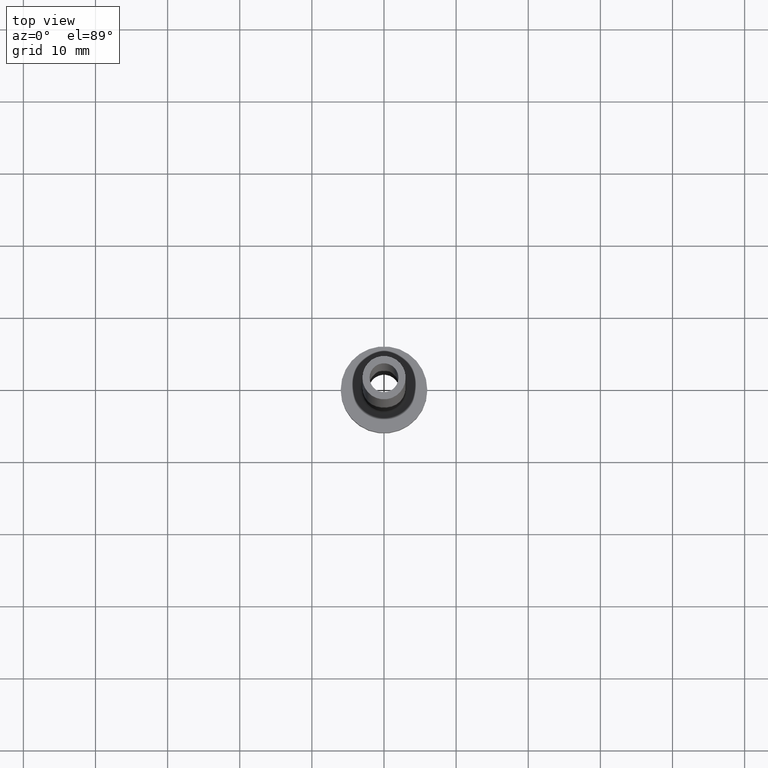
[diagram: clean part render]
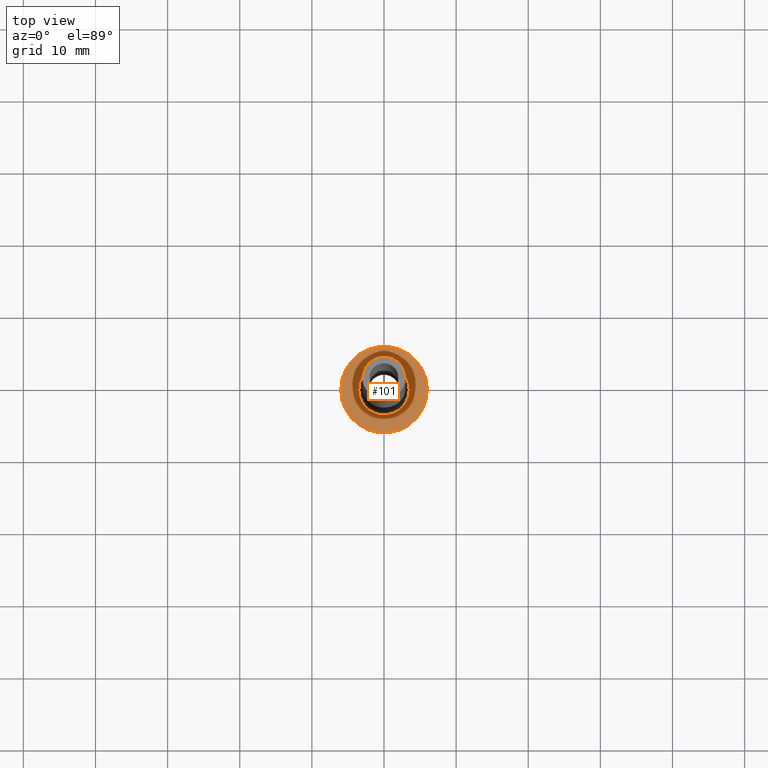
[diagram: same view with one face highlighted and labeled with its STEP entity id]
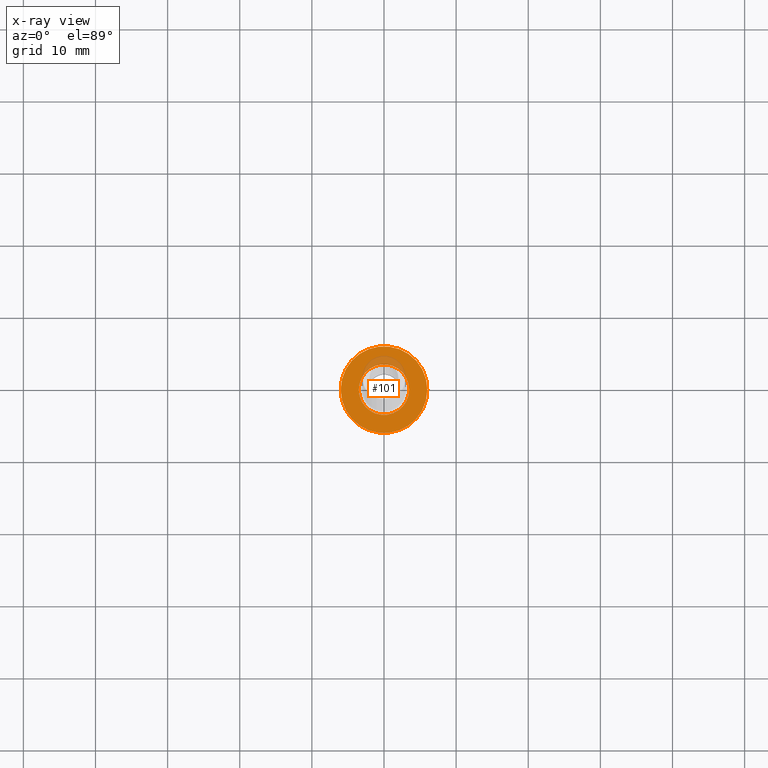
[diagram: x-ray of the same camera — body ghosted, the highlighted face saturated]
A machine part, top view. The second image highlights one B-rep face of the part: STEP entity #101.
The next image is the same camera in x-ray: the body ghosted, the highlighted face saturated — about 8% of this face is hidden behind the body in this view.
In plain terms, the highlighted planar face has unit normal (0, 0, 1).
Its self-contained STEP definition (entity closure, byte-faithful):
#4 = ORIENTED_EDGE ( 'NONE', *, *, #160, .T. ) ;
#5 = CIRCLE ( 'NONE', #458, 6.000000000000000888 ) ;
#17 = CARTESIAN_POINT ( 'NONE',  ( -3.500000000000000444, 4.286263797015737088E-16, 5.000000000000002665 ) ) ;
#19 = DIRECTION ( 'NONE',  ( 0.000000000000000000, 0.000000000000000000, 1.000000000000000000 ) ) ;
#27 = CARTESIAN_POINT ( 'NONE',  ( 3.500000000000000444, 0.000000000000000000, 5.000000000000002665 ) ) ;
#38 = DIRECTION ( 'NONE',  ( 1.000000000000000000, 0.000000000000000000, 0.000000000000000000 ) ) ;
#42 = DIRECTION ( 'NONE',  ( 0.000000000000000000, 0.000000000000000000, 1.000000000000000000 ) ) ;
#51 = FACE_BOUND ( 'NONE', #340, .T. ) ;
#61 = CARTESIAN_POINT ( 'NONE',  ( 6.000000000000000888, 7.347880794884120722E-16, 5.000000000000000000 ) ) ;
#72 = VERTEX_POINT ( 'NONE', #17 ) ;
#96 = CARTESIAN_POINT ( 'NONE',  ( -6.000000000000000888, 0.000000000000000000, 5.000000000000000000 ) ) ;
#101 = ADVANCED_FACE ( 'NONE', ( #51, #203 ), #124, .T. ) ;
#111 = VERTEX_POINT ( 'NONE', #27 ) ;
#124 = PLANE ( 'NONE',  #439 ) ;
#140 = CARTESIAN_POINT ( 'NONE',  ( 0.000000000000000000, 0.000000000000000000, 5.000000000000000000 ) ) ;
#141 = ORIENTED_EDGE ( 'NONE', *, *, #420, .T. ) ;
#155 = AXIS2_PLACEMENT_3D ( 'NONE', #140, #257, #402 ) ;
#160 = EDGE_CURVE ( 'NONE', #367, #360, #362, .T. ) ;
#203 = FACE_OUTER_BOUND ( 'NONE', #444, .T. ) ;
#205 = CIRCLE ( 'NONE', #361, 3.500000000000000444 ) ;
#223 = ORIENTED_EDGE ( 'NONE', *, *, #447, .T. ) ;
#227 = CARTESIAN_POINT ( 'NONE',  ( 0.000000000000000000, 0.000000000000000000, 5.000000000000000000 ) ) ;
#238 = EDGE_CURVE ( 'NONE', #72, #111, #205, .T. ) ;
#257 = DIRECTION ( 'NONE',  ( -0.000000000000000000, -0.000000000000000000, -1.000000000000000000 ) ) ;
#265 = DIRECTION ( 'NONE',  ( 0.000000000000000000, 0.000000000000000000, 1.000000000000000000 ) ) ;
#277 = CARTESIAN_POINT ( 'NONE',  ( 0.000000000000000000, 0.000000000000000000, 5.000000000000000000 ) ) ;
#299 = ORIENTED_EDGE ( 'NONE', *, *, #238, .T. ) ;
#300 = DIRECTION ( 'NONE',  ( 1.000000000000000000, 0.000000000000000000, 0.000000000000000000 ) ) ;
#340 = EDGE_LOOP ( 'NONE', ( #223, #299 ) ) ;
#347 = DIRECTION ( 'NONE',  ( 1.000000000000000000, 0.000000000000000000, 0.000000000000000000 ) ) ;
#360 = VERTEX_POINT ( 'NONE', #96 ) ;
#361 = AXIS2_PLACEMENT_3D ( 'NONE', #377, #451, #347 ) ;
#362 = CIRCLE ( 'NONE', #427, 6.000000000000000888 ) ;
#364 = CARTESIAN_POINT ( 'NONE',  ( 0.000000000000000000, 0.000000000000000000, 5.000000000000000000 ) ) ;
#367 = VERTEX_POINT ( 'NONE', #61 ) ;
#377 = CARTESIAN_POINT ( 'NONE',  ( 0.000000000000000000, 0.000000000000000000, 5.000000000000000000 ) ) ;
#402 = DIRECTION ( 'NONE',  ( 1.000000000000000000, 0.000000000000000000, 0.000000000000000000 ) ) ;
#418 = CIRCLE ( 'NONE', #155, 3.500000000000000444 ) ;
#420 = EDGE_CURVE ( 'NONE', #360, #367, #5, .T. ) ;
#427 = AXIS2_PLACEMENT_3D ( 'NONE', #364, #265, #300 ) ;
#439 = AXIS2_PLACEMENT_3D ( 'NONE', #277, #19, #452 ) ;
#444 = EDGE_LOOP ( 'NONE', ( #141, #4 ) ) ;
#447 = EDGE_CURVE ( 'NONE', #111, #72, #418, .T. ) ;
#451 = DIRECTION ( 'NONE',  ( -0.000000000000000000, -0.000000000000000000, -1.000000000000000000 ) ) ;
#452 = DIRECTION ( 'NONE',  ( 1.000000000000000000, 0.000000000000000000, -0.000000000000000000 ) ) ;
#458 = AXIS2_PLACEMENT_3D ( 'NONE', #227, #42, #38 ) ;